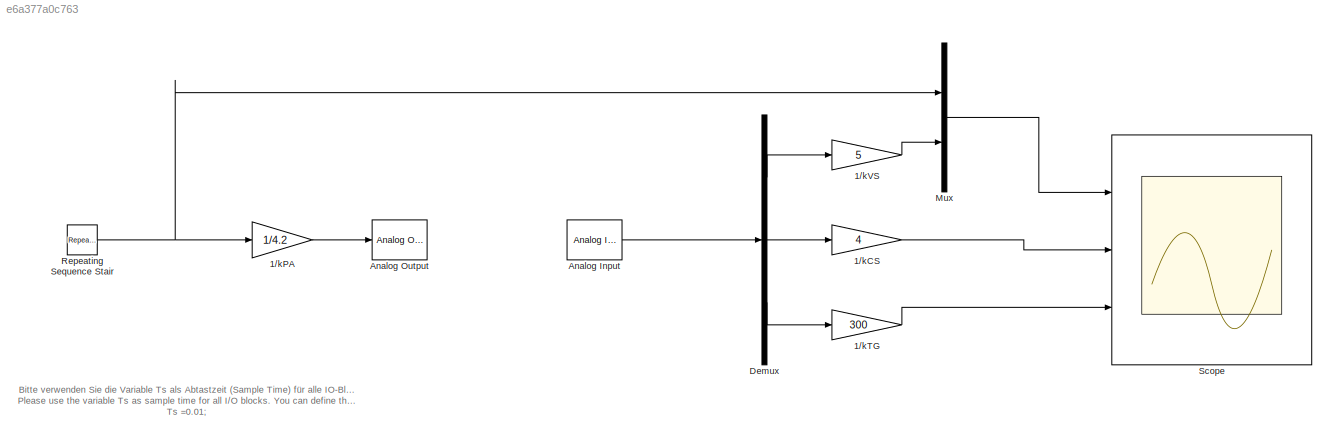
MODEL slx_e6a377a0c763
KIND model
CONFIG AbsTol = auto
CONFIG EnableMultiTasking = on
CONFIG FixedStep = auto
CONFIG MaxStep = auto
CONFIG MinStep = auto
CONFIG RelTol = 1e-3
CONFIG SampleTimeConstraint = Unconstrained
CONFIG SolverName = ode45
CONFIG StartTime = 0.0
CONFIG StopTime = 10.0
BLOCK [Gain] 1//kCS
  Gain = 4
BLOCK [Gain] 1//kPA
  Gain = 1/4.2
BLOCK [Gain] 1//kTG
  Gain = 300
BLOCK [Gain] 1//kVS
  Gain = 5
BLOCK [Reference] Analog Input  REF=sldrtlib/Analog Input
  AttributesFormatString = National Instruments\nPCIe-6321 [auto]
  Ports = [0, 1]
  SourceBlock = sldrtlib/Analog Input
  SourceProductBaseCode = WT
  SourceType = Simulink Desktop Real-Time Analog Input
BLOCK [Reference] Analog Output  REF=sldrtlib/Analog Output
  AttributesFormatString = National Instruments\nPCIe-6321 [auto]
  Ports = [1]
  SourceBlock = sldrtlib/Analog Output
  SourceProductBaseCode = WT
  SourceType = Simulink Desktop Real-Time Analog Output
BLOCK [Demux] Demux
  Outputs = 3
  Ports = [1, 3]
BLOCK [Mux] Mux
  DisplayOption = bar
  Inputs = 2
  Ports = [2, 1]
BLOCK [Reference] Repeating Sequence Stair  REF=simulink/Sources/Repeating
Sequence
Stair
  Ports = [0, 1]
  SourceBlock = simulink/Sources/Repeating\nSequence\nStair
  SourceProductBaseCode = SL
  SourceType = Repeating Sequence Stair
BLOCK [Scope] Scope
  Floating = off
  NumInputPorts = 3
  Ports = [3]
  ScopeSpecificationString = Simulink.scopes.TimeScopeBlockCfg('CurrentConfiguration', extmgr.ConfigurationSet(extmgr.Configuration('Core','General UI',true),extmgr.Configuration('Core','Source UI',true),extmgr.Configuration('Sources','WiredSimulink',true,'DataLoggingVariableName','D','DataLogging',true,'DataLoggingSaveFormat','StructureWithTime'),extmgr.Configuration('Visuals','Time Domain',true,'SerializedDisplays',{struct(...<+2783ch>
ANNOTATION (root): Bitte verwenden Sie die Variable Ts als Abtastzeit (Sample Time) für alle IO-Blöcke. Definieren Sie in Matlab-Workspace die geeigenete Abtastzeit mit den folgenden Befehl: Please use the variable Ts as sample time for all I/O blocks. You can define the sample time executing the following comand in Matlab workspace: Ts =0.01;
LINE 1//kCS:1 -> Scope:2
LINE 1//kPA:1 -> Analog Output:1
LINE 1//kTG:1 -> Scope:3
LINE 1//kVS:1 -> Mux:2
LINE Analog Input:1 -> Demux:1
LINE Demux:1 -> 1//kVS:1
LINE Demux:2 -> 1//kCS:1
LINE Demux:3 -> 1//kTG:1
LINE Mux:1 -> Scope:1
NET Repeating Sequence Stair:1 -> 1//kPA:1, Mux:1
note: NET lines group one-source signal fan-out (src -> all destinations, sorted); 1:1 wires keep LINE
